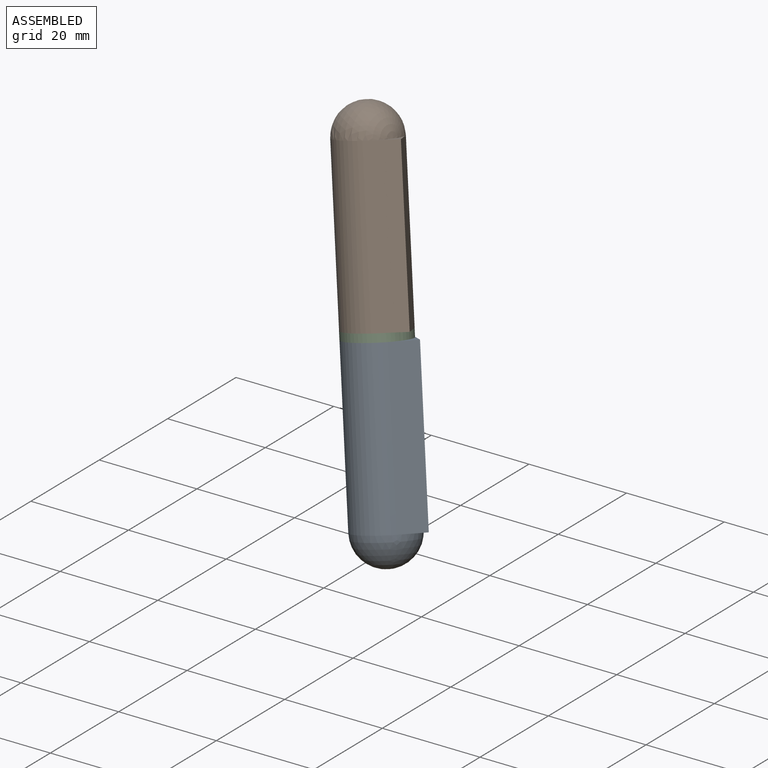
[diagram: assembled view]
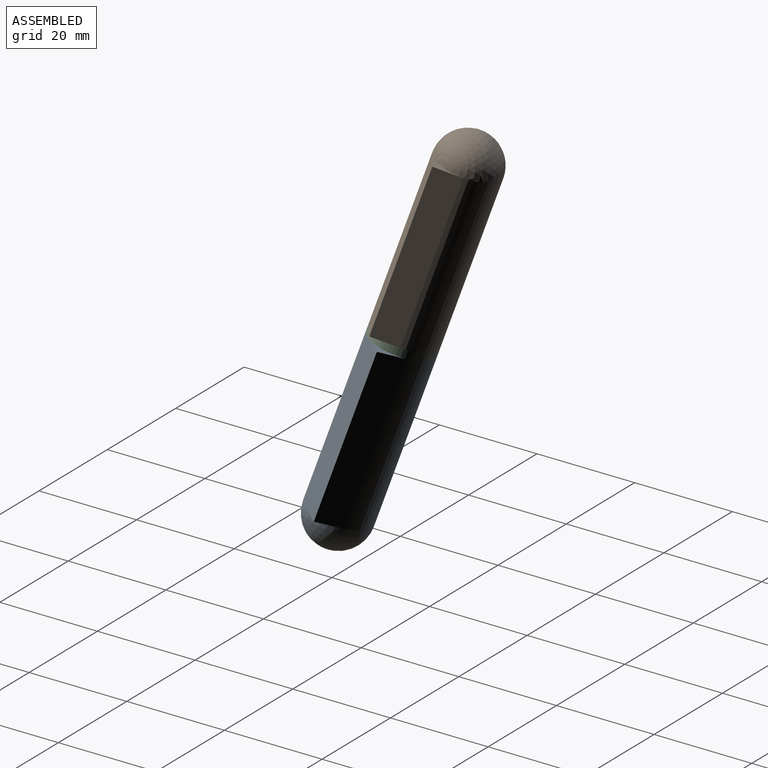
[diagram: assembled view, second angle]
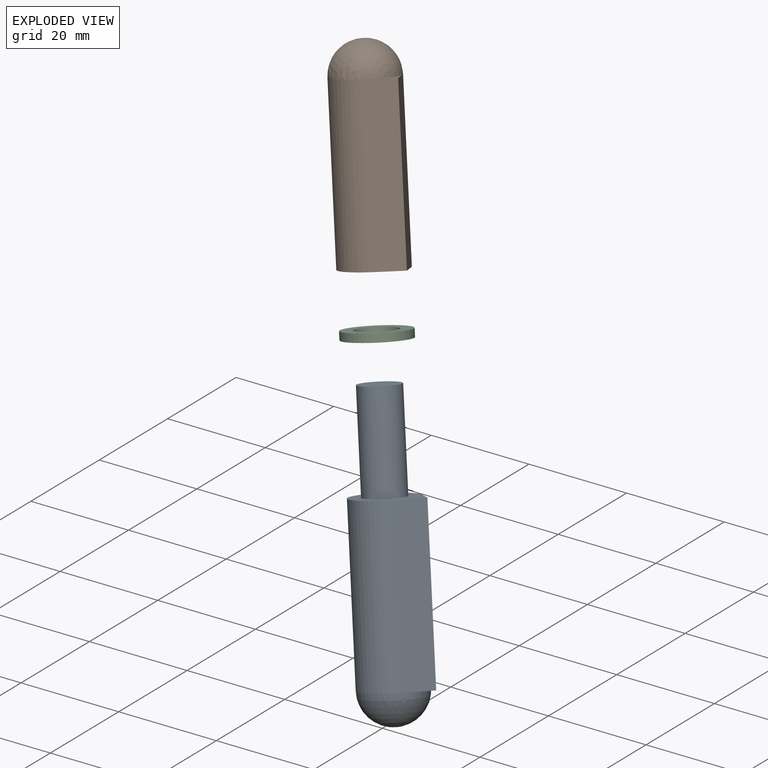
[diagram: exploded view]
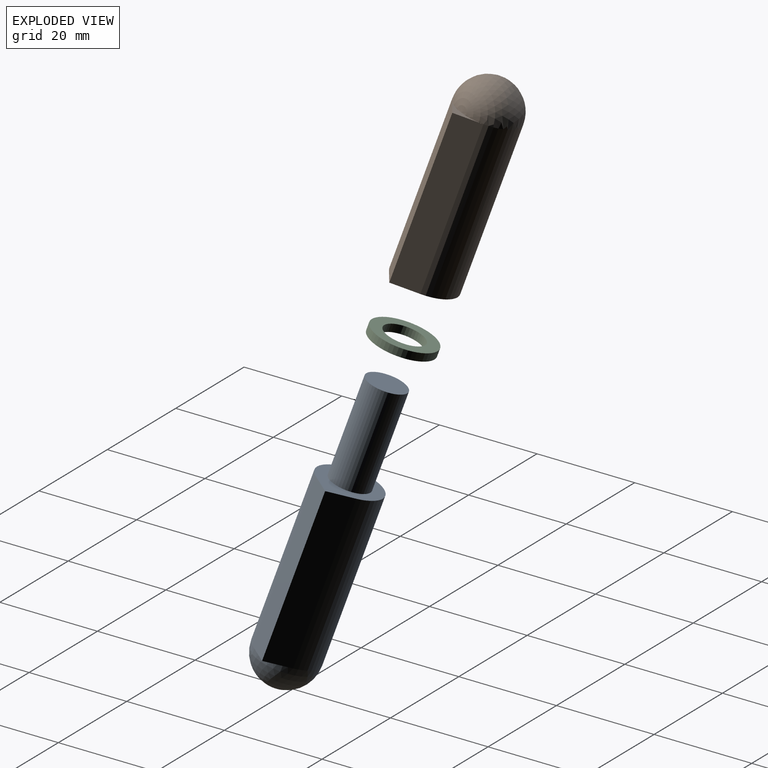
[diagram: exploded view, second angle]
ASSEMBLY  parts=3 mates=2
PART A: 8 faces, bbox 14.8x12.7x57.9 mm
  f0: sphere r=6.35mm, area 253.4mm2, adj f1,f5
  f1: cylinder r=6.35mm len=32.54mm, axis (0,0,-1), area 999.4mm2, adj f0,f2,f3,f4
  f2: plane 32.54x4.2mm, normal (0.75,0.66,0), area 182.5mm2, adj f1,f3,f4,f5
  f3: plane 32.54x4.2mm, normal (0.75,-0.66,0), area 182.5mm2, adj f1,f2,f4,f5
  f4: plane 14.82x12.7mm, normal (0,0,1), area 83.6mm2, adj f1,f2,f3,f6
  f5: plane 8.41x3.71mm, normal (0,0,-1), area 6.4mm2, adj f0,f2,f3
  f6: cylinder r=3.97mm len=19.05mm, axis (0,0,-1), area 475mm2, adj f4,f7
  f7: plane 7.94x7.94mm, normal (0,0,1), area 49.5mm2, adj f6
PART B: 9 faces, bbox 14.8x12.7x38.9 mm
  f0: plane 32.54x4.18mm, normal (0.75,-0.66,0), area 180.9mm2, adj f1,f2,f4,f5
  f1: plane 32.54x4.18mm, normal (0.75,0.66,0), area 180.9mm2, adj f0,f2,f4,f5
  f2: cylinder r=6.35mm len=32.54mm, axis (0,0,-1), area 1001mm2, adj f0,f1,f5,f6
  f3: cylinder r=3.97mm len=27.58mm, axis (0,0,-1), area 687.8mm2, adj f5,f7
  f4: plane 8.37x3.66mm, normal (0,0,1), area 6.3mm2, adj f0,f1,f6
  f5: plane 14.79x12.7mm, normal (0,0,-1), area 83.5mm2, adj f0,f1,f2,f3
  f6: sphere r=6.35mm, area 253.4mm2, adj f2,f4
  f7: sphere r=6.35mm, area 55.6mm2, adj f3
  f8: sphere r=3.97mm, area 197.9mm2
PART C: 4 faces, bbox 12.7x12.7x1.6 mm
  f0: cylinder r=3.97mm len=7.94mm, axis (0,0,-1), area 39.6mm2, adj f2,f3
  f1: cylinder r=6.35mm len=12.7mm, axis (0,0,-1), area 63.3mm2, adj f2,f3
  f2: plane 12.7x12.7mm, normal (0,0,1), area 77.2mm2, adj f0,f1
  f3: plane 12.7x12.7mm, normal (0,0,-1), area 77.2mm2, adj f0,f1
PLACE A rot(axis=(-0.74,-0.65,0.17),19.5deg) t=(-3.9,-13.34,-48.91)mm
PLACE B rot(axis=(-0.53,-0.62,-0.58),23.5deg) t=(-3.9,-13.34,-48.91)mm
PLACE C rot(axis=(-0.74,-0.65,0.17),19.5deg) t=(-3.9,-13.34,-48.91)mm
MATE revolute C.f0 <-> B.f2  axis (-0.22,0.24,0.94) through (-11.53,-5.14,-16.67)mm
MATE fastened C.f0 <-> A.f1  axis (0.22,-0.24,-0.94) through (-11.18,-5.52,-18.17)mm
